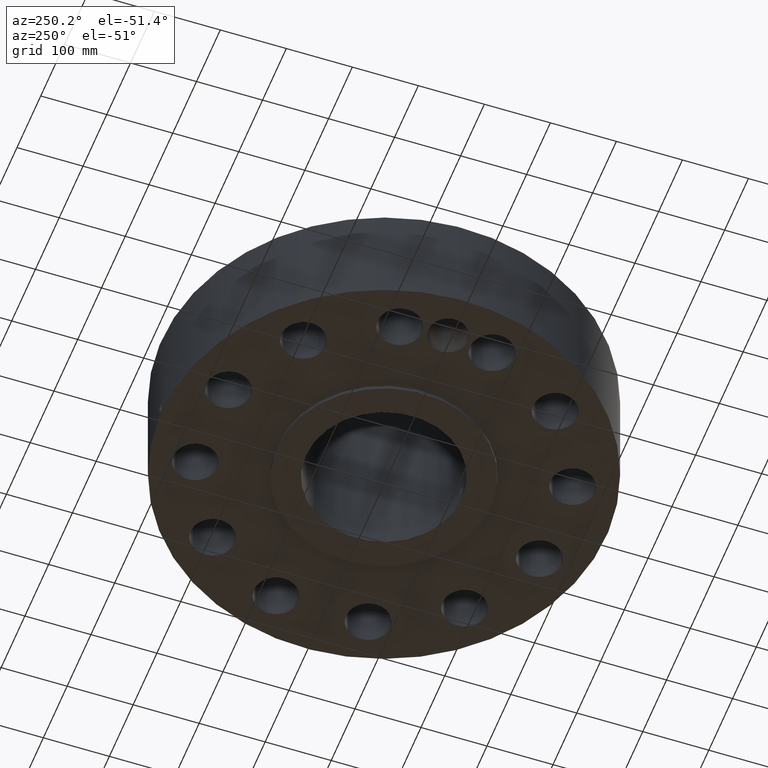
[diagram: clean part render]
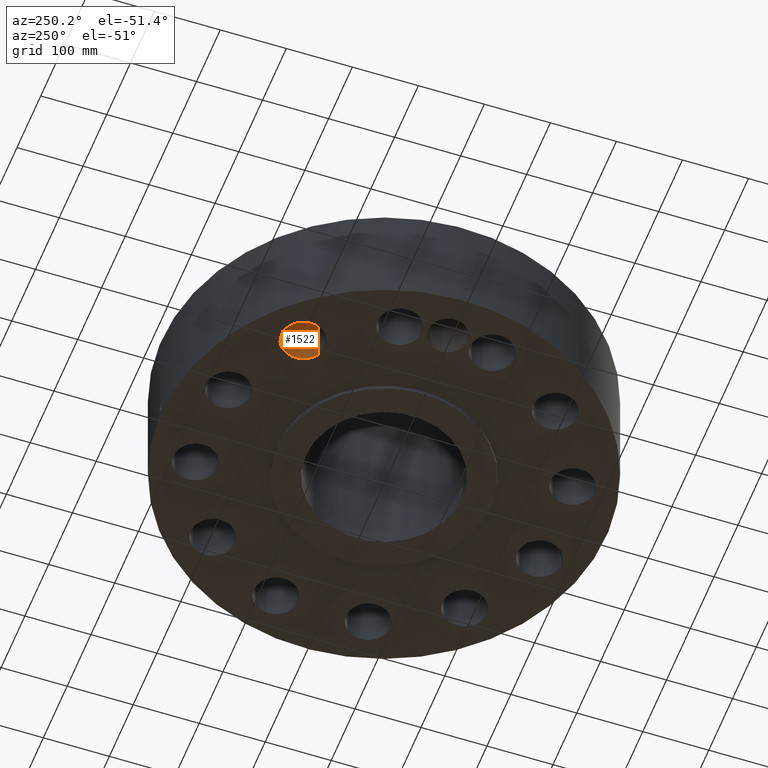
[diagram: same view with one face highlighted and labeled with its STEP entity id]
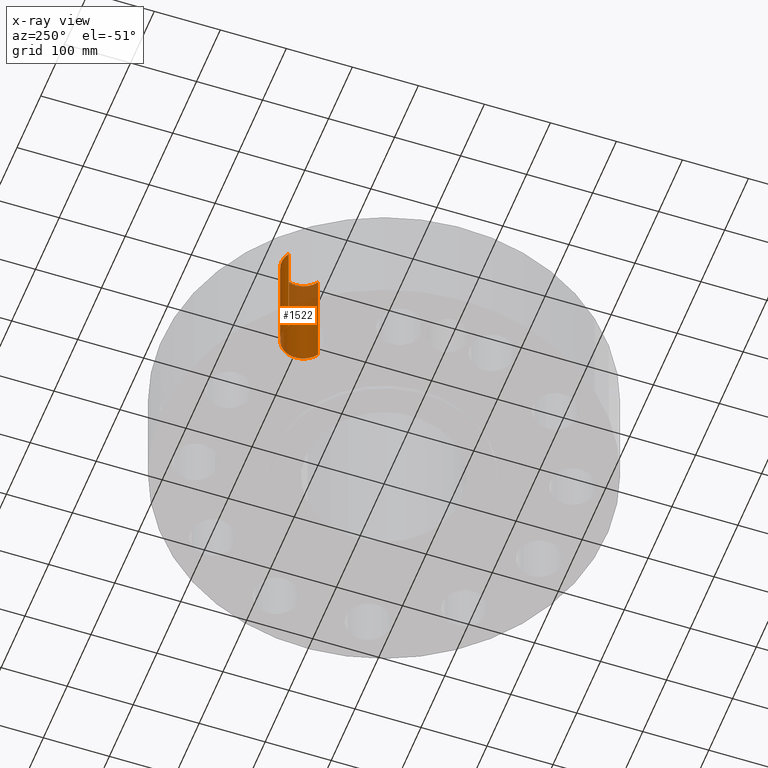
[diagram: x-ray of the same camera — body ghosted, the highlighted face saturated]
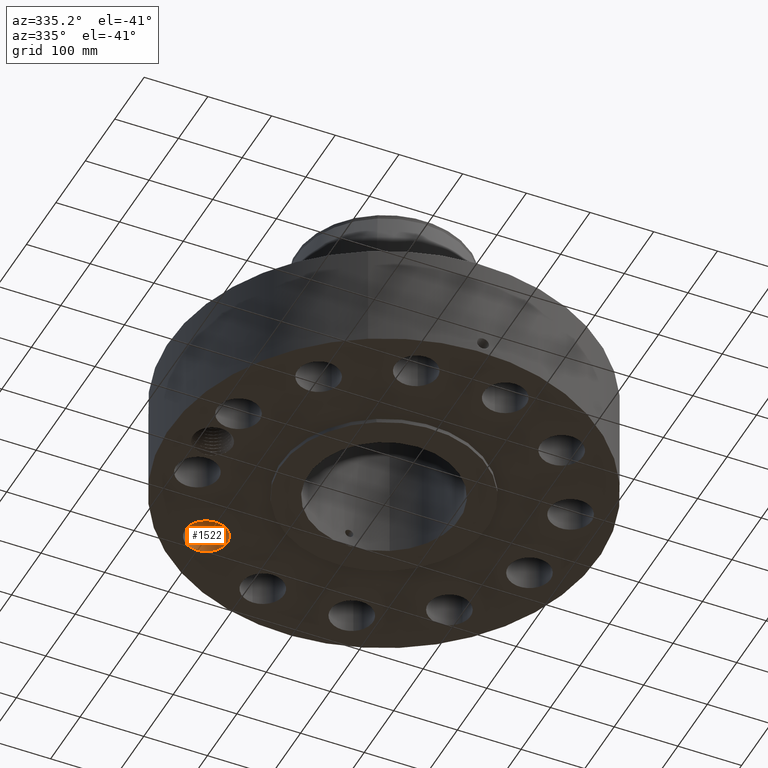
[diagram: same view with one face highlighted and labeled with its STEP entity id]
A machine part, auxiliary view. The second image highlights one B-rep face of the part: STEP entity #1522.
The next image is the same camera in x-ray: the body ghosted, the highlighted face saturated — about 30% of this face is hidden behind the body in this view.
A second angle (auxiliary view) of the same face is appended — the face is thin or edge-on in the first view.
In plain terms, the highlighted cylindrical surface (edge-blend (fillet) strip) has radius 33.274 mm, axis along (0, 0, -1).
Its self-contained STEP definition (entity closure, byte-faithful):
#392=AXIS2_PLACEMENT_3D('Circle Axis2P3D',#390,#391,$) ;
#787=AXIS2_PLACEMENT_3D('Circle Axis2P3D',#785,#786,$) ;
#1497=AXIS2_PLACEMENT_3D('Cylinder Axis2P3D',#1494,#1495,#1496) ;
#385=CARTESIAN_POINT('Vertex',(-6.83142175973,6.39428792079,0.250000000001)) ;
#387=CARTESIAN_POINT('Vertex',(-8.19459734055,8.63173117949,0.250000000001)) ;
#390=CARTESIAN_POINT('Axis2P3D Location',(-7.51300955014,7.51300955014,0.250000000001)) ;
#785=CARTESIAN_POINT('Axis2P3D Location',(-7.51300955014,7.51300955014,6.75000000003)) ;
#789=CARTESIAN_POINT('Vertex',(-8.19459734055,8.63173117949,6.75000000003)) ;
#791=CARTESIAN_POINT('Vertex',(-6.83142175973,6.39428792079,6.75000000003)) ;
#1494=CARTESIAN_POINT('Axis2P3D Location',(-7.51300955014,7.51300955014,6.74606299215)) ;
#1499=CARTESIAN_POINT('Line Origine',(-6.83142175973,6.39428792079,3.50000000001)) ;
#1504=CARTESIAN_POINT('Line Origine',(-8.19459734055,8.63173117949,3.50000000001)) ;
#391=DIRECTION('Axis2P3D Direction',(0.,0.,-0.0393700787402)) ;
#786=DIRECTION('Axis2P3D Direction',(0.,0.,-0.0393700787402)) ;
#1495=DIRECTION('Axis2P3D Direction',(0.,0.,-0.0393700787402)) ;
#1496=DIRECTION('Axis2P3D XDirection',(-0.0204840954021,0.0336214951417,0.)) ;
#1500=DIRECTION('Vector Direction',(0.,0.,-0.0393700787402)) ;
#1505=DIRECTION('Vector Direction',(0.,0.,-0.0393700787402)) ;
#1501=VECTOR('Line Direction',#1500,0.0393700787402) ;
#1506=VECTOR('Line Direction',#1505,0.0393700787402) ;
#1517=ORIENTED_EDGE('',*,*,#1508,.F.) ;
#1518=ORIENTED_EDGE('',*,*,#394,.T.) ;
#1519=ORIENTED_EDGE('',*,*,#1503,.T.) ;
#1520=ORIENTED_EDGE('',*,*,#793,.F.) ;
#1522=ADVANCED_FACE('PartBody',(#1521),#1498,.F.) ;
#393=CIRCLE('generated circle',#392,1.31000000001) ;
#788=CIRCLE('generated circle',#787,1.31000000001) ;
#1498=CYLINDRICAL_SURFACE('generated cylinder',#1497,1.31000000001) ;
#394=EDGE_CURVE('',#388,#386,#393,.T.) ;
#793=EDGE_CURVE('',#790,#792,#788,.T.) ;
#1503=EDGE_CURVE('',#386,#792,#1502,.F.) ;
#1508=EDGE_CURVE('',#388,#790,#1507,.F.) ;
#1516=EDGE_LOOP('',(#1517,#1518,#1519,#1520)) ;
#1521=FACE_OUTER_BOUND('',#1516,.T.) ;
#1502=LINE('Line',#1499,#1501) ;
#1507=LINE('Line',#1504,#1506) ;
#386=VERTEX_POINT('',#385) ;
#388=VERTEX_POINT('',#387) ;
#790=VERTEX_POINT('',#789) ;
#792=VERTEX_POINT('',#791) ;